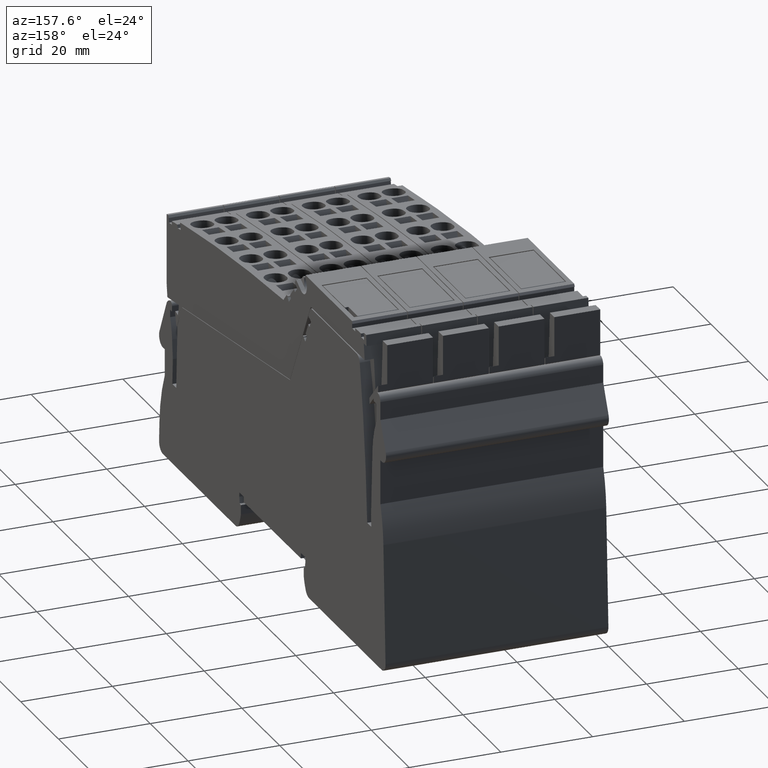
[diagram: clean part render]
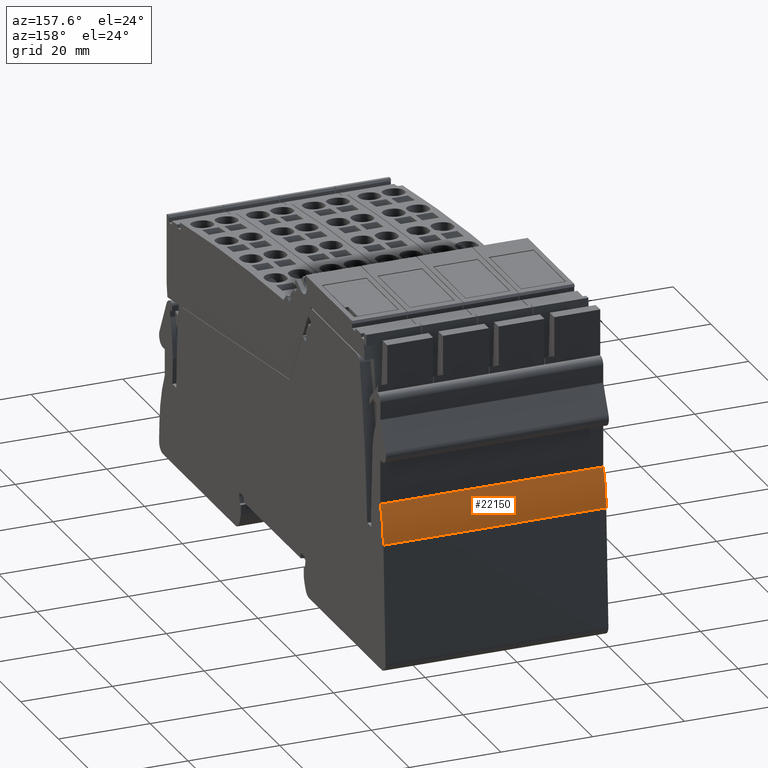
[diagram: same view with one face highlighted and labeled with its STEP entity id]
A machine part, auxiliary view. The second image highlights one B-rep face of the part: STEP entity #22150.
In plain terms, the highlighted cylindrical surface (partial cylindrical patch) has radius 30 mm, axis along (1, 0, 0).
Its self-contained STEP definition (entity closure, byte-faithful):
#1200=CARTESIAN_POINT('',(293.72862020886,-26.6633289582249,36.45));
#1210=VERTEX_POINT('',#1200);
#1240=CARTESIAN_POINT('',(265.338905386256,-36.3599310584231,36.45));
#1250=DIRECTION('',(0.,0.,1.));
#1260=DIRECTION('',(1.,-1.05193631583234E-14,0.));
#1270=AXIS2_PLACEMENT_3D('',#1240,#1250,#1260);
#1280=CIRCLE('',#1270,29.9999999999717);
#1290=CARTESIAN_POINT('',(295.310352033684,-35.0513494374696,36.45));
#1300=VERTEX_POINT('',#1290);
#1310=EDGE_CURVE('',#1300,#1210,#1280,.T.);
#9440=CARTESIAN_POINT('',(295.310352033684,-35.0513494374696,-12.15));
#9450=VERTEX_POINT('',#9440);
#9480=CARTESIAN_POINT('',(265.338905386256,-36.3599310584231,-12.15));
#9490=DIRECTION('',(0.,0.,1.));
#9500=DIRECTION('',(1.,-1.05193631583234E-14,0.));
#9510=AXIS2_PLACEMENT_3D('',#9480,#9490,#9500);
#9520=CIRCLE('',#9510,29.9999999999717);
#9530=CARTESIAN_POINT('',(293.72862020886,-26.6633289582249,-12.15));
#9540=VERTEX_POINT('',#9530);
#9550=EDGE_CURVE('',#9450,#9540,#9520,.T.);
#21830=CARTESIAN_POINT('',(295.310352033684,-35.0513494374696,
6.14999999999999));
#21840=DIRECTION('',(0.,0.,1.));
#21850=VECTOR('',#21840,1.);
#21860=LINE('',#21830,#21850);
#21870=EDGE_CURVE('',#9450,#1300,#21860,.T.);
#21990=CARTESIAN_POINT('',(265.338905386256,-36.3599310584231,
6.14999999999999));
#22000=DIRECTION('',(0.,0.,1.));
#22010=DIRECTION('',(1.,-1.05193631583234E-14,0.));
#22020=AXIS2_PLACEMENT_3D('',#21990,#22000,#22010);
#22030=CYLINDRICAL_SURFACE('',#22020,29.9999999999717);
#22040=ORIENTED_EDGE('',*,*,#9550,.T.);
#22050=ORIENTED_EDGE('',*,*,#21870,.F.);
#22060=ORIENTED_EDGE('',*,*,#1310,.F.);
#22070=CARTESIAN_POINT('',(293.72862020886,-26.6633289582249,
6.14999999999999));
#22080=DIRECTION('',(0.,0.,1.));
#22090=VECTOR('',#22080,1.);
#22100=LINE('',#22070,#22090);
#22110=EDGE_CURVE('',#9540,#1210,#22100,.T.);
#22120=ORIENTED_EDGE('',*,*,#22110,.T.);
#22130=EDGE_LOOP('',(#22120,#22060,#22050,#22040));
#22140=FACE_OUTER_BOUND('',#22130,.T.);
#22150=ADVANCED_FACE('',(#22140),#22030,.T.);